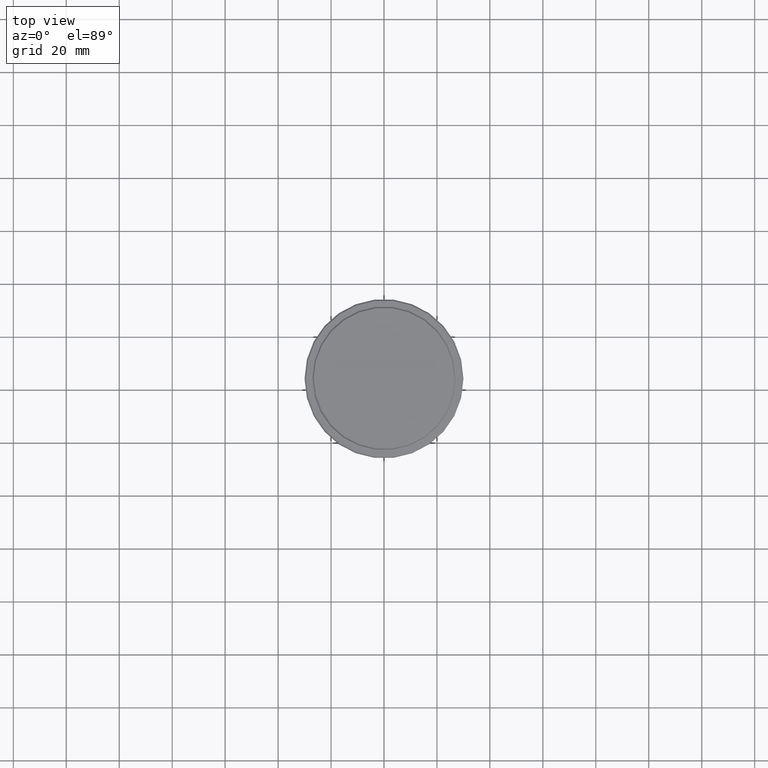
[diagram: clean part render]
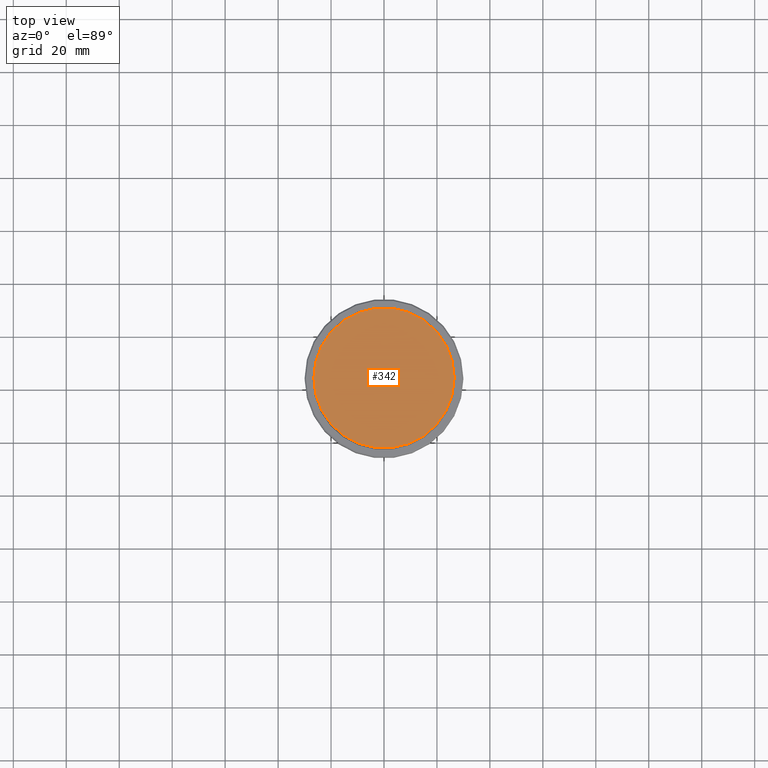
[diagram: same view with one face highlighted and labeled with its STEP entity id]
A machine part, top view. The second image highlights one B-rep face of the part: STEP entity #342.
In plain terms, the highlighted planar face has unit normal (0, -0, 1).
Its self-contained STEP definition (entity closure, byte-faithful):
#33 = EDGE_LOOP ( 'NONE', ( #237, #1006 ) ) ;
#132 = FACE_OUTER_BOUND ( 'NONE', #33, .T. ) ;
#162 = PLANE ( 'NONE',  #1094 ) ;
#183 = VERTEX_POINT ( 'NONE', #430 ) ;
#232 = AXIS2_PLACEMENT_3D ( 'NONE', #691, #1131, #923 ) ;
#237 = ORIENTED_EDGE ( 'NONE', *, *, #772, .T. ) ;
#342 = ADVANCED_FACE ( 'NONE', ( #132 ), #162, .T. ) ;
#343 = DIRECTION ( 'NONE',  ( 1.000000000000000000, 0.000000000000000000, 0.000000000000000000 ) ) ;
#361 = EDGE_CURVE ( 'NONE', #807, #183, #1276, .T. ) ;
#430 = CARTESIAN_POINT ( 'NONE',  ( -26.49999999999999645, 0.000000000000000000, 0.000000000000000000 ) ) ;
#691 = CARTESIAN_POINT ( 'NONE',  ( 0.000000000000000000, 0.000000000000000000, 0.000000000000000000 ) ) ;
#696 = CARTESIAN_POINT ( 'NONE',  ( 26.49999999999999645, 3.275930187719169552E-15, 0.000000000000000000 ) ) ;
#710 = CARTESIAN_POINT ( 'NONE',  ( 0.000000000000000000, 0.000000000000000000, 0.000000000000000000 ) ) ;
#772 = EDGE_CURVE ( 'NONE', #183, #807, #1316, .T. ) ;
#807 = VERTEX_POINT ( 'NONE', #696 ) ;
#905 = DIRECTION ( 'NONE',  ( 1.000000000000000000, 0.000000000000000000, 0.000000000000000000 ) ) ;
#923 = DIRECTION ( 'NONE',  ( 1.000000000000000000, 0.000000000000000000, 0.000000000000000000 ) ) ;
#1006 = ORIENTED_EDGE ( 'NONE', *, *, #361, .T. ) ;
#1094 = AXIS2_PLACEMENT_3D ( 'NONE', #1122, #1348, #343 ) ;
#1122 = CARTESIAN_POINT ( 'NONE',  ( 0.000000000000000000, 0.000000000000000000, 0.000000000000000000 ) ) ;
#1131 = DIRECTION ( 'NONE',  ( -0.000000000000000000, -0.000000000000000000, 1.000000000000000000 ) ) ;
#1240 = DIRECTION ( 'NONE',  ( -0.000000000000000000, -0.000000000000000000, 1.000000000000000000 ) ) ;
#1276 = CIRCLE ( 'NONE', #1299, 26.49999999999999645 ) ;
#1299 = AXIS2_PLACEMENT_3D ( 'NONE', #710, #1240, #905 ) ;
#1316 = CIRCLE ( 'NONE', #232, 26.49999999999999645 ) ;
#1348 = DIRECTION ( 'NONE',  ( 0.000000000000000000, -0.000000000000000000, 1.000000000000000000 ) ) ;